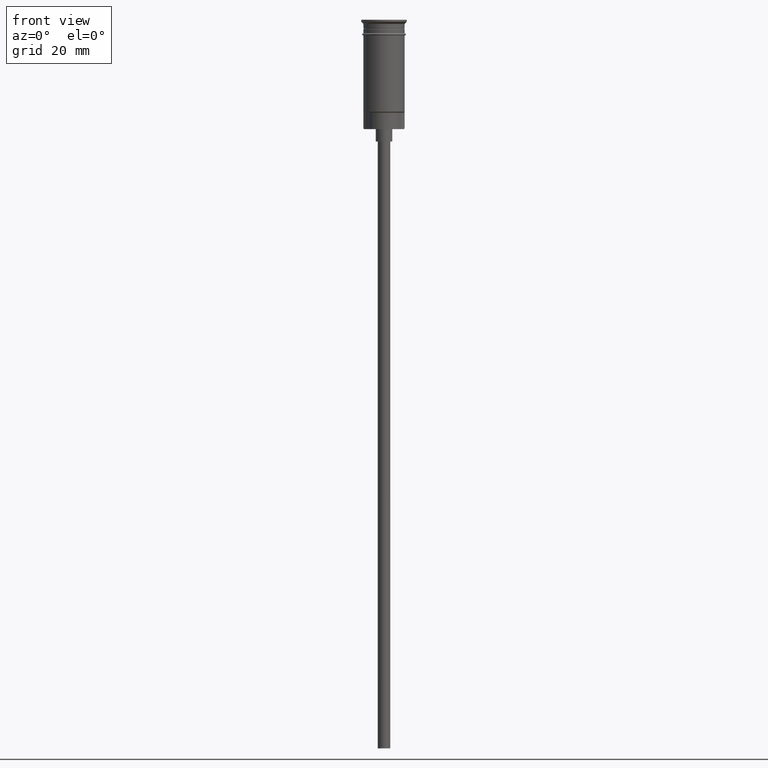
[diagram: clean part render]
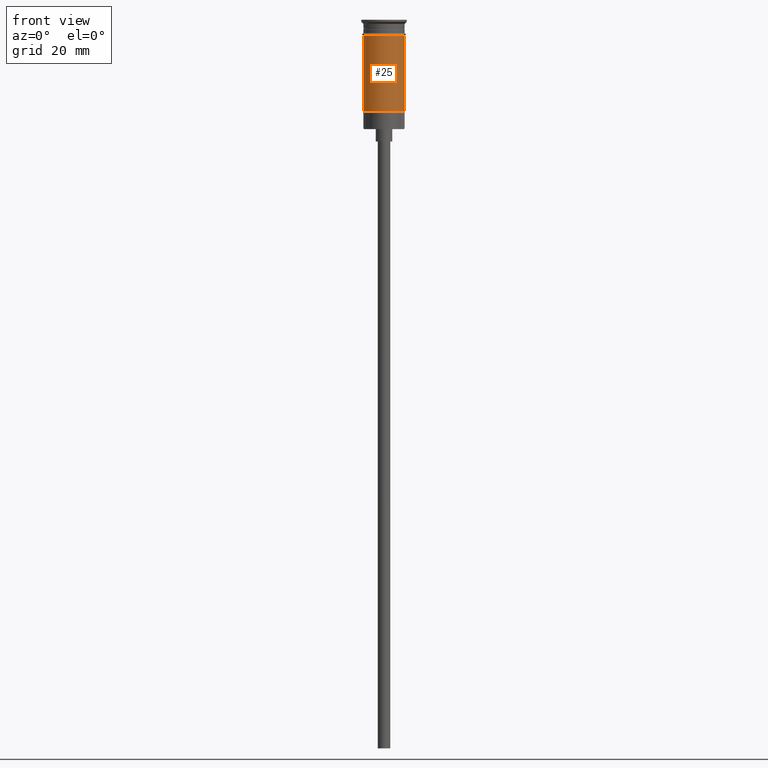
[diagram: same view with one face highlighted and labeled with its STEP entity id]
A machine part, front view. The second image highlights one B-rep face of the part: STEP entity #25.
In plain terms, the highlighted cylindrical surface (edge-blend (fillet) strip) has radius 5 mm, axis along (-0, -0, 1).
Its self-contained STEP definition (entity closure, byte-faithful):
#25 = ADVANCED_FACE ( 'NONE', ( #704 ), #57, .T. ) ;
#57 = CYLINDRICAL_SURFACE ( 'NONE', #880, 4.999999999999996447 ) ;
#145 = LINE ( 'NONE', #640, #382 ) ;
#158 = VERTEX_POINT ( 'NONE', #187 ) ;
#187 = CARTESIAN_POINT ( 'NONE',  ( 4.999999999999999112, 0.000000000000000000, -3.799999999999998934 ) ) ;
#194 = DIRECTION ( 'NONE',  ( -0.000000000000000000, -0.000000000000000000, 1.000000000000000000 ) ) ;
#211 = DIRECTION ( 'NONE',  ( -1.000000000000000000, 0.000000000000000000, 0.000000000000000000 ) ) ;
#302 = EDGE_CURVE ( 'NONE', #1415, #158, #1030, .T. ) ;
#304 = VERTEX_POINT ( 'NONE', #921 ) ;
#327 = DIRECTION ( 'NONE',  ( -0.000000000000000000, -0.000000000000000000, 1.000000000000000000 ) ) ;
#332 = CARTESIAN_POINT ( 'NONE',  ( 0.000000000000000000, 0.000000000000000000, -3.799999999999998934 ) ) ;
#377 = CARTESIAN_POINT ( 'NONE',  ( 4.999999999999996447, 6.123233995736761352E-16, -22.30000000000001137 ) ) ;
#382 = VECTOR ( 'NONE', #1122, 1000.000000000000000 ) ;
#388 = VERTEX_POINT ( 'NONE', #1259 ) ;
#564 = DIRECTION ( 'NONE',  ( 1.000000000000000000, 0.000000000000000000, 0.000000000000000000 ) ) ;
#576 = EDGE_CURVE ( 'NONE', #388, #304, #145, .T. ) ;
#601 = EDGE_LOOP ( 'NONE', ( #722, #1014, #1525, #1234 ) ) ;
#630 = EDGE_CURVE ( 'NONE', #304, #158, #1540, .T. ) ;
#640 = CARTESIAN_POINT ( 'NONE',  ( -4.999999999999996447, 6.123233995736762338E-16, 0.000000000000000000 ) ) ;
#700 = AXIS2_PLACEMENT_3D ( 'NONE', #816, #821, #211 ) ;
#704 = FACE_OUTER_BOUND ( 'NONE', #601, .T. ) ;
#722 = ORIENTED_EDGE ( 'NONE', *, *, #576, .F. ) ;
#786 = DIRECTION ( 'NONE',  ( -0.000000000000000000, -0.000000000000000000, 1.000000000000000000 ) ) ;
#802 = DIRECTION ( 'NONE',  ( 1.000000000000000000, 0.000000000000000000, 0.000000000000000000 ) ) ;
#816 = CARTESIAN_POINT ( 'NONE',  ( 0.000000000000000000, 0.000000000000000000, -22.30000000000001137 ) ) ;
#821 = DIRECTION ( 'NONE',  ( -0.000000000000000000, -0.000000000000000000, 1.000000000000000000 ) ) ;
#844 = AXIS2_PLACEMENT_3D ( 'NONE', #332, #194, #564 ) ;
#853 = VECTOR ( 'NONE', #786, 1000.000000000000000 ) ;
#880 = AXIS2_PLACEMENT_3D ( 'NONE', #1534, #327, #802 ) ;
#921 = CARTESIAN_POINT ( 'NONE',  ( -4.999999999999999112, 6.123233995736765296E-16, -3.799999999999998934 ) ) ;
#1014 = ORIENTED_EDGE ( 'NONE', *, *, #1196, .T. ) ;
#1030 = LINE ( 'NONE', #1392, #853 ) ;
#1122 = DIRECTION ( 'NONE',  ( -0.000000000000000000, -0.000000000000000000, 1.000000000000000000 ) ) ;
#1196 = EDGE_CURVE ( 'NONE', #388, #1415, #1554, .T. ) ;
#1234 = ORIENTED_EDGE ( 'NONE', *, *, #630, .F. ) ;
#1259 = CARTESIAN_POINT ( 'NONE',  ( -4.999999999999993783, 0.000000000000000000, -22.30000000000001137 ) ) ;
#1392 = CARTESIAN_POINT ( 'NONE',  ( 4.999999999999996447, 0.000000000000000000, 0.000000000000000000 ) ) ;
#1415 = VERTEX_POINT ( 'NONE', #377 ) ;
#1525 = ORIENTED_EDGE ( 'NONE', *, *, #302, .T. ) ;
#1534 = CARTESIAN_POINT ( 'NONE',  ( 0.000000000000000000, 0.000000000000000000, 0.000000000000000000 ) ) ;
#1540 = CIRCLE ( 'NONE', #844, 4.999999999999999112 ) ;
#1554 = CIRCLE ( 'NONE', #700, 4.999999999999996447 ) ;